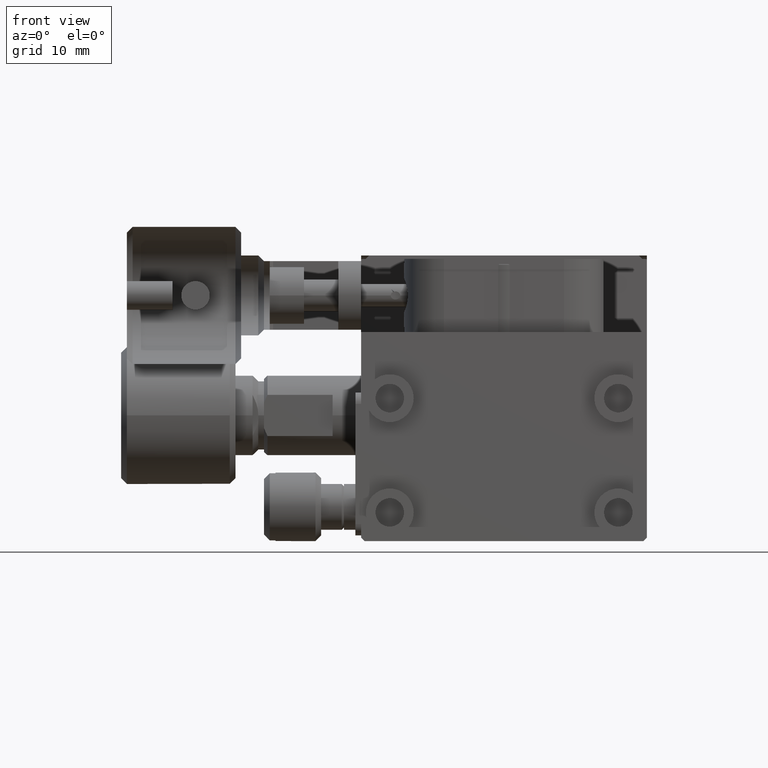
[diagram: clean part render]
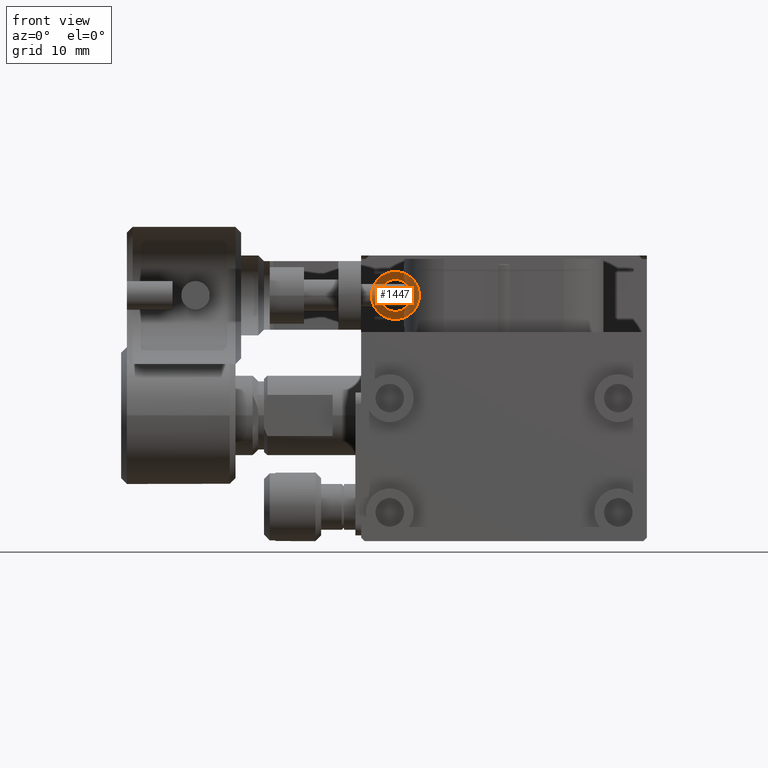
[diagram: same view with one face highlighted and labeled with its STEP entity id]
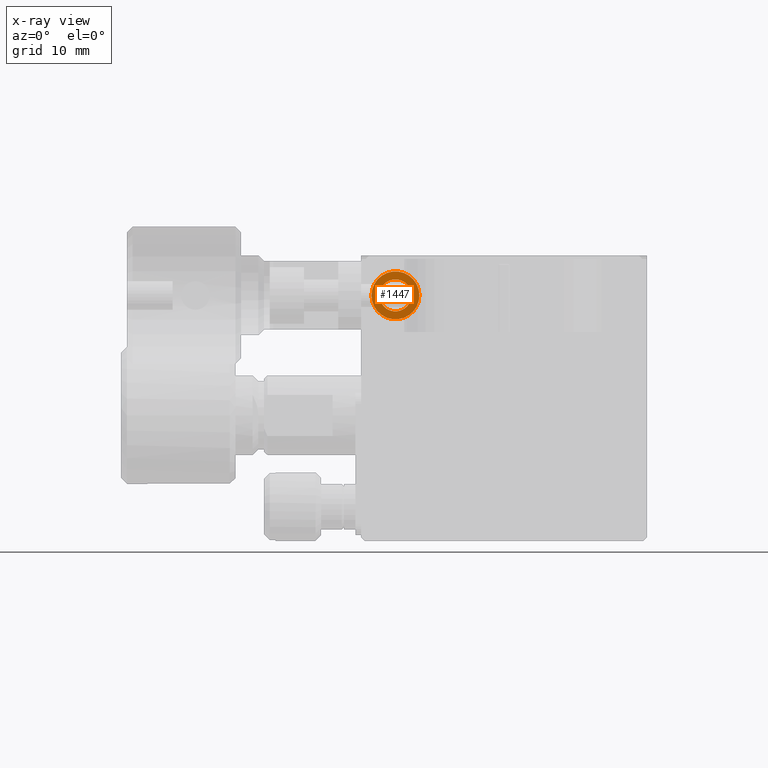
[diagram: x-ray of the same camera — body ghosted, the highlighted face saturated]
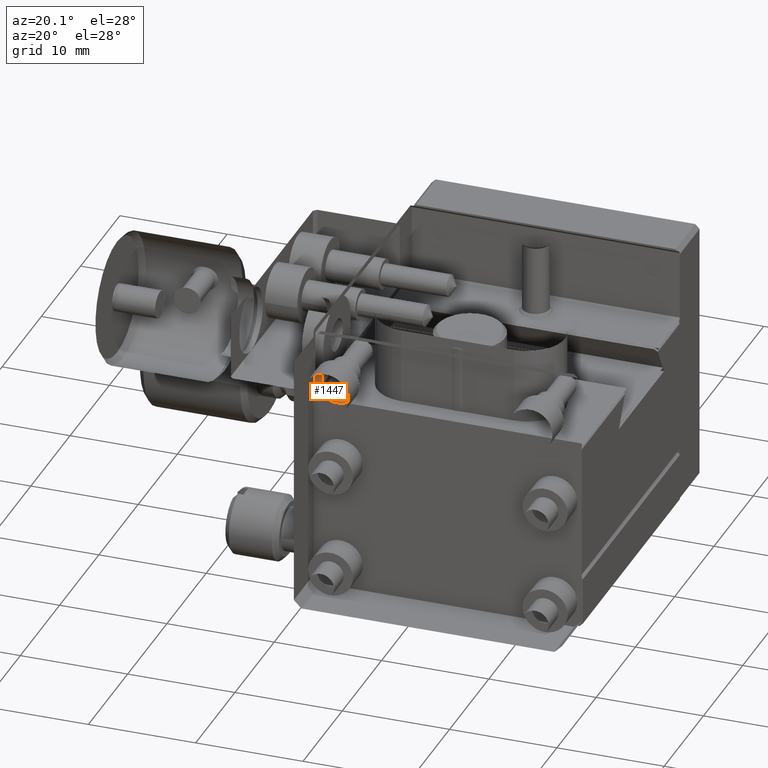
[diagram: same view with one face highlighted and labeled with its STEP entity id]
A machine part, front view. The second image highlights one B-rep face of the part: STEP entity #1447.
The next image is the same camera in x-ray: the body ghosted, the highlighted face saturated — about 0% of this face is hidden behind the body in this view.
A second angle (auxiliary view) of the same face is appended — the face is thin or edge-on in the first view.
In plain terms, the highlighted planar face has unit normal (0, -1, -0).
Its self-contained STEP definition (entity closure, byte-faithful):
#825 = CARTESIAN_POINT ( 'NONE',  ( 3.000000000000000000, 17.80000000000000071, -4.900000000000010125 ) ) ;
#1325 = CARTESIAN_POINT ( 'NONE',  ( 0.8999999999999998002, 17.80000000000000071, -3.500000000000000000 ) ) ;
#1425 = CARTESIAN_POINT ( 'NONE',  ( 3.000000000000000000, 17.80000000000000071, -3.500000000000000000 ) ) ;
#1447 = ADVANCED_FACE ( 'NONE', ( #6713, #4620 ), #2383, .F. ) ;
#1808 = CARTESIAN_POINT ( 'NONE',  ( 1.600000000000000089, 17.80000000000000071, -3.500000000000000000 ) ) ;
#1816 = AXIS2_PLACEMENT_3D ( 'NONE', #1425, #7269, #9351 ) ;
#2127 = DIRECTION ( 'NONE',  ( 0.000000000000000000, -1.000000000000000000, 0.000000000000000000 ) ) ;
#2288 = ORIENTED_EDGE ( 'NONE', *, *, #4309, .F. ) ;
#2383 = PLANE ( 'NONE',  #3746 ) ;
#2557 = EDGE_LOOP ( 'NONE', ( #2288 ) ) ;
#2571 = EDGE_LOOP ( 'NONE', ( #2751 ) ) ;
#2751 = ORIENTED_EDGE ( 'NONE', *, *, #5801, .F. ) ;
#2884 = CIRCLE ( 'NONE', #1816, 1.399999999999999911 ) ;
#2935 = DIRECTION ( 'NONE',  ( -1.000000000000000000, 0.000000000000000000, 0.000000000000000000 ) ) ;
#3552 = VERTEX_POINT ( 'NONE', #1325 ) ;
#3746 = AXIS2_PLACEMENT_3D ( 'NONE', #825, #7468, #3759 ) ;
#3759 = DIRECTION ( 'NONE',  ( -1.000000000000000000, 0.000000000000000000, -0.000000000000000000 ) ) ;
#3951 = VERTEX_POINT ( 'NONE', #1808 ) ;
#4309 = EDGE_CURVE ( 'NONE', #3951, #3951, #2884, .T. ) ;
#4620 = FACE_OUTER_BOUND ( 'NONE', #2571, .T. ) ;
#5324 = CIRCLE ( 'NONE', #7457, 2.100000000000000089 ) ;
#5801 = EDGE_CURVE ( 'NONE', #3552, #3552, #5324, .T. ) ;
#6713 = FACE_BOUND ( 'NONE', #2557, .T. ) ;
#7269 = DIRECTION ( 'NONE',  ( -0.000000000000000000, 1.000000000000000000, -0.000000000000000000 ) ) ;
#7457 = AXIS2_PLACEMENT_3D ( 'NONE', #9337, #2127, #2935 ) ;
#7468 = DIRECTION ( 'NONE',  ( 0.000000000000000000, -1.000000000000000000, -0.000000000000000000 ) ) ;
#9337 = CARTESIAN_POINT ( 'NONE',  ( 3.000000000000000000, 17.80000000000000071, -3.500000000000000000 ) ) ;
#9351 = DIRECTION ( 'NONE',  ( -1.000000000000000000, 0.000000000000000000, 0.000000000000000000 ) ) ;